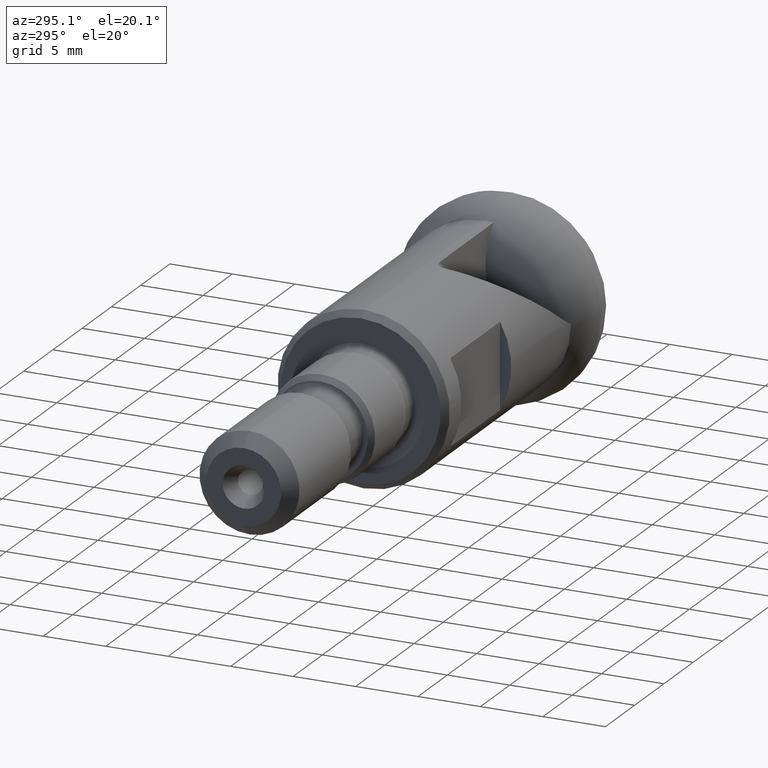
[diagram: clean part render]
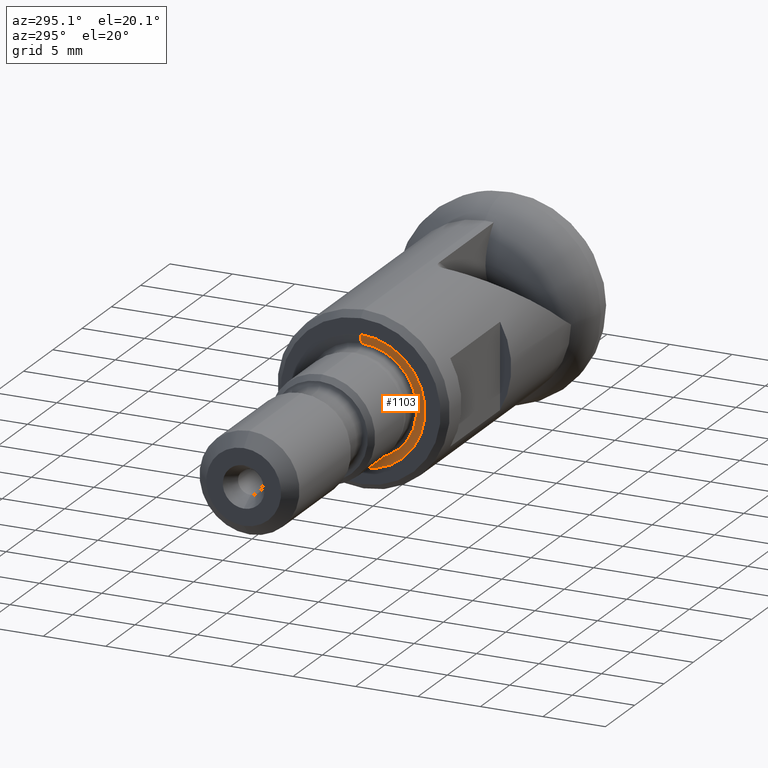
[diagram: same view with one face highlighted and labeled with its STEP entity id]
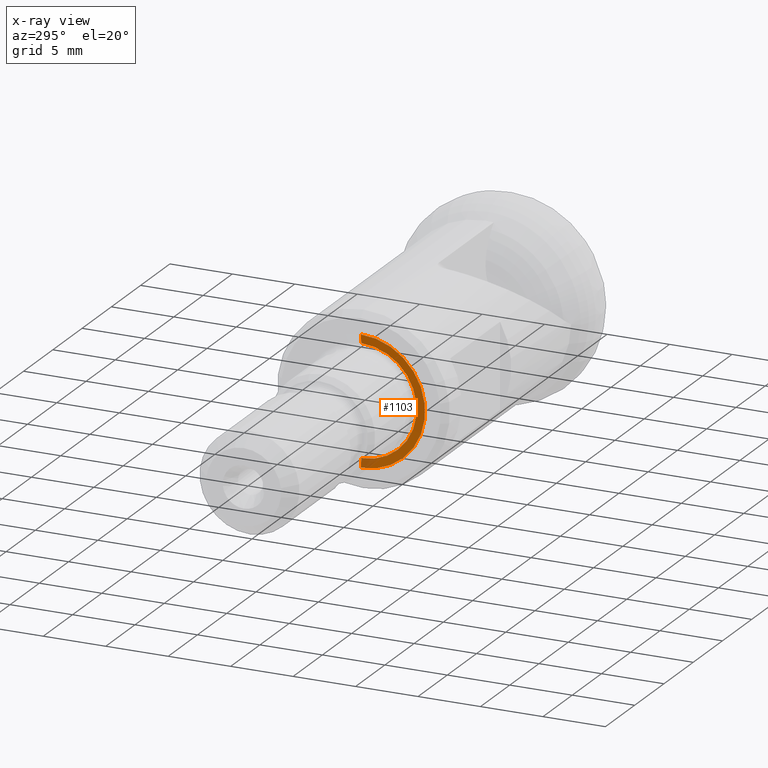
[diagram: x-ray of the same camera — body ghosted, the highlighted face saturated]
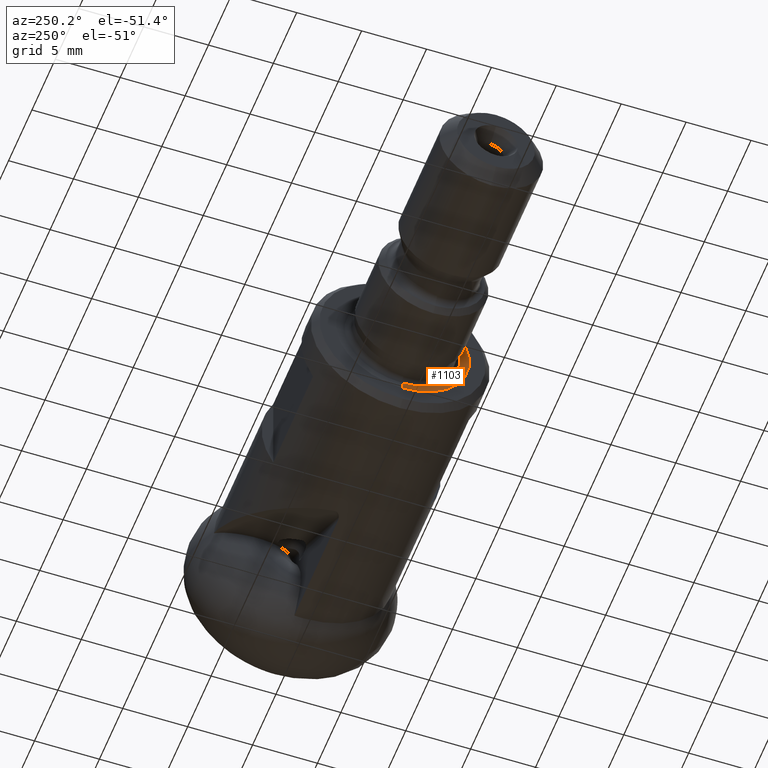
[diagram: same view with one face highlighted and labeled with its STEP entity id]
A machine part, auxiliary view. The second image highlights one B-rep face of the part: STEP entity #1103.
The next image is the same camera in x-ray: the body ghosted, the highlighted face saturated — about 7% of this face is hidden behind the body in this view.
A second angle (auxiliary view) of the same face is appended — the face is thin or edge-on in the first view.
In plain terms, the highlighted conical surface has half-angle 82 deg.
Its self-contained STEP definition (entity closure, byte-faithful):
#287 = ORIENTED_EDGE ( 'NONE', *, *, #2070, .F. ) ;
#300 = EDGE_CURVE ( 'NONE', #1177, #2001, #2125, .T. ) ;
#391 = CARTESIAN_POINT ( 'NONE',  ( -27.10000000000000100, 6.306931015608857800E-016, -5.149999999999990600 ) ) ;
#441 = EDGE_LOOP ( 'NONE', ( #1062, #941, #1960, #287 ) ) ;
#467 = CONICAL_SURFACE ( 'NONE', #1589, 5.149999999999990600, 1.431169986635342000 ) ;
#500 = DIRECTION ( 'NONE',  ( -1.000000000000000000, 0.0000000000000000000, 0.0000000000000000000 ) ) ;
#525 = AXIS2_PLACEMENT_3D ( 'NONE', #1868, #635, #2674 ) ;
#615 = VECTOR ( 'NONE', #2388, 999.9999999999998900 ) ;
#635 = DIRECTION ( 'NONE',  ( 1.000000000000000000, -0.0000000000000000000, -0.0000000000000000000 ) ) ;
#698 = LINE ( 'NONE', #882, #2295 ) ;
#707 = CARTESIAN_POINT ( 'NONE',  ( -27.10000000000000100, 0.0000000000000000000, 0.0000000000000000000 ) ) ;
#882 = CARTESIAN_POINT ( 'NONE',  ( -27.10000000000000100, 6.306931015608857800E-016, -5.149999999999990600 ) ) ;
#935 = FACE_OUTER_BOUND ( 'NONE', #441, .T. ) ;
#941 = ORIENTED_EDGE ( 'NONE', *, *, #2305, .T. ) ;
#973 = CARTESIAN_POINT ( 'NONE',  ( -27.10000000000000100, 0.0000000000000000000, 5.149999999999990600 ) ) ;
#1062 = ORIENTED_EDGE ( 'NONE', *, *, #1898, .T. ) ;
#1099 = AXIS2_PLACEMENT_3D ( 'NONE', #1433, #2672, #2679 ) ;
#1103 = ADVANCED_FACE ( 'NONE', ( #935 ), #467, .F. ) ;
#1177 = VERTEX_POINT ( 'NONE', #973 ) ;
#1340 = CARTESIAN_POINT ( 'NONE',  ( -27.00000000000000400, 0.0000000000000000000, 4.438463027761615700 ) ) ;
#1433 = CARTESIAN_POINT ( 'NONE',  ( -27.10000000000000100, 0.0000000000000000000, 0.0000000000000000000 ) ) ;
#1589 = AXIS2_PLACEMENT_3D ( 'NONE', #707, #500, #2387 ) ;
#1638 = LINE ( 'NONE', #2322, #615 ) ;
#1868 = CARTESIAN_POINT ( 'NONE',  ( -27.00000000000000400, 0.0000000000000000000, 0.0000000000000000000 ) ) ;
#1898 = EDGE_CURVE ( 'NONE', #2108, #2511, #2627, .T. ) ;
#1960 = ORIENTED_EDGE ( 'NONE', *, *, #300, .F. ) ;
#2001 = VERTEX_POINT ( 'NONE', #391 ) ;
#2070 = EDGE_CURVE ( 'NONE', #2108, #1177, #1638, .T. ) ;
#2108 = VERTEX_POINT ( 'NONE', #1340 ) ;
#2125 = CIRCLE ( 'NONE', #1099, 5.149999999999990600 ) ;
#2295 = VECTOR ( 'NONE', #2351, 999.9999999999998900 ) ;
#2305 = EDGE_CURVE ( 'NONE', #2511, #2001, #698, .T. ) ;
#2322 = CARTESIAN_POINT ( 'NONE',  ( -27.10000000000000100, 0.0000000000000000000, 5.149999999999990600 ) ) ;
#2351 = DIRECTION ( 'NONE',  ( -0.1391731009600736300, 1.212728620682194000E-016, -0.9902680687415692500 ) ) ;
#2382 = CARTESIAN_POINT ( 'NONE',  ( -27.00000000000000400, 5.871240277845494500E-016, -4.438463027761615700 ) ) ;
#2387 = DIRECTION ( 'NONE',  ( 0.0000000000000000000, 0.0000000000000000000, 1.000000000000000000 ) ) ;
#2388 = DIRECTION ( 'NONE',  ( -0.1391731009600736300, 0.0000000000000000000, 0.9902680687415692500 ) ) ;
#2511 = VERTEX_POINT ( 'NONE', #2382 ) ;
#2627 = CIRCLE ( 'NONE', #525, 4.438463027761615700 ) ;
#2672 = DIRECTION ( 'NONE',  ( 1.000000000000000000, -0.0000000000000000000, -0.0000000000000000000 ) ) ;
#2674 = DIRECTION ( 'NONE',  ( 0.0000000000000000000, 0.0000000000000000000, -1.000000000000000000 ) ) ;
#2679 = DIRECTION ( 'NONE',  ( 0.0000000000000000000, 0.0000000000000000000, -1.000000000000000000 ) ) ;